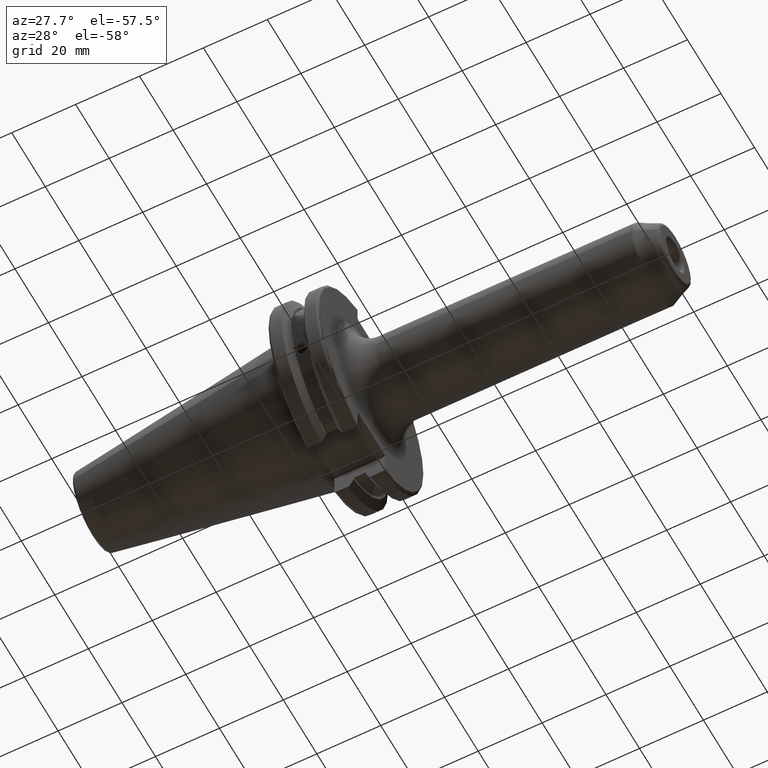
[diagram: clean part render]
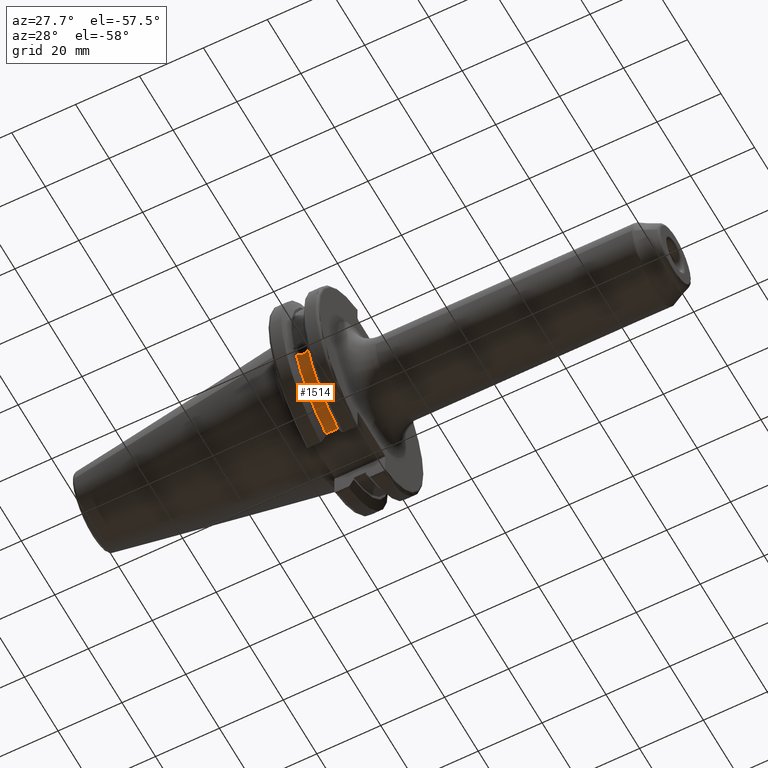
[diagram: same view with one face highlighted and labeled with its STEP entity id]
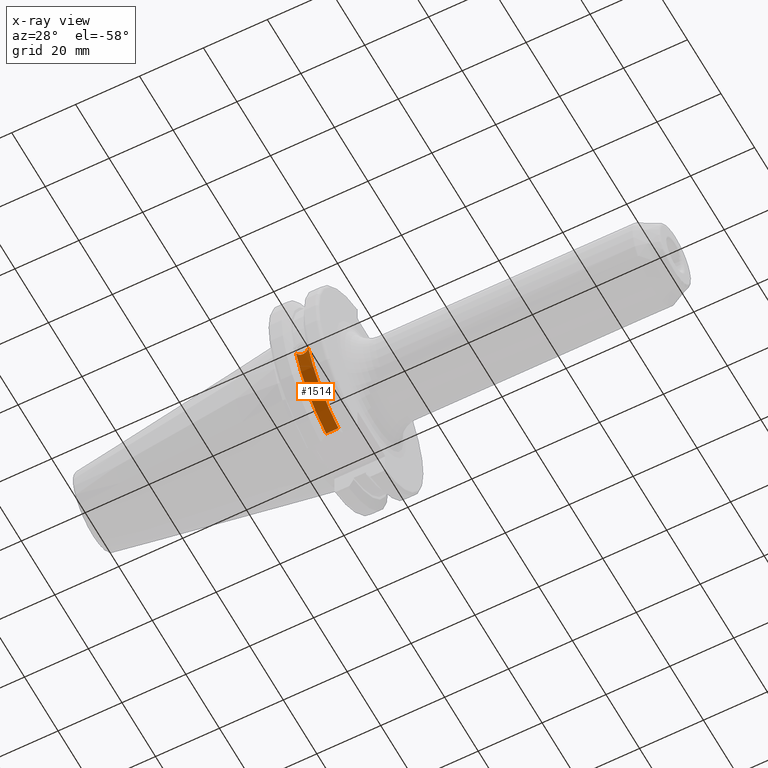
[diagram: x-ray of the same camera — body ghosted, the highlighted face saturated]
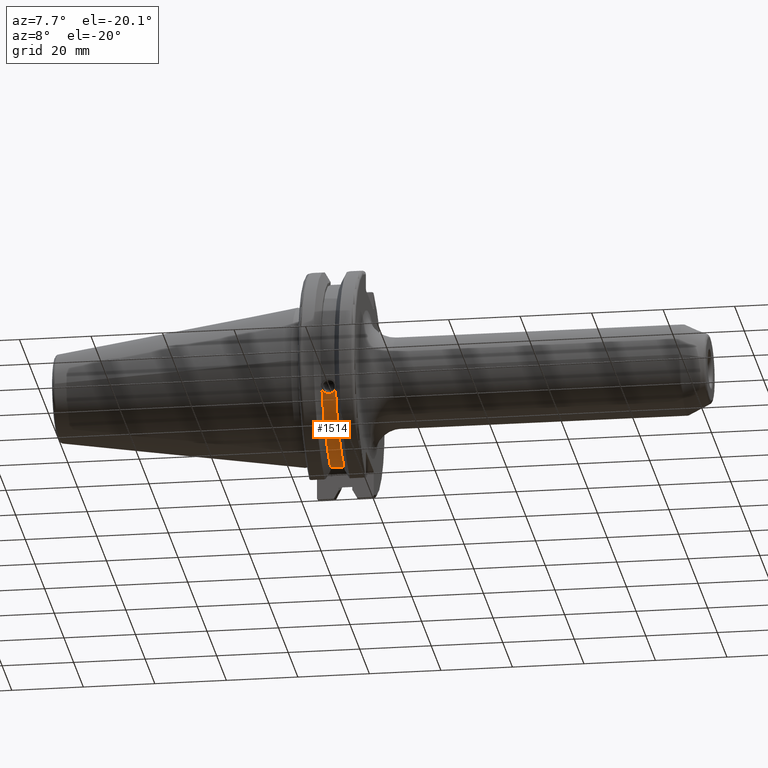
[diagram: same view with one face highlighted and labeled with its STEP entity id]
A machine part, auxiliary view. The second image highlights one B-rep face of the part: STEP entity #1514.
The next image is the same camera in x-ray: the body ghosted, the highlighted face saturated — about 0% of this face is hidden behind the body in this view.
A second angle (auxiliary view) of the same face is appended — the face is thin or edge-on in the first view.
In plain terms, the highlighted cylindrical surface (partial cylindrical patch) has radius 28.15 mm, axis along (1, 0, 0).
Its self-contained STEP definition (entity closure, byte-faithful):
#73=B_SPLINE_CURVE_WITH_KNOTS('',3,(#2552,#2553,#2554,#2555,#2556,#2557,
#2558,#2559,#2560,#2561,#2562,#2563,#2564,#2565,#2566),.UNSPECIFIED.,.F.,
 .F.,(4,2,2,3,2,2,4),(-0.231446873660085,-0.158271583089134,-0.0791357915445672,
0.,0.0791357915445671,0.158271583089134,0.231446873660466),
 .UNSPECIFIED.);
#125=LINE('',#2624,#217);
#217=VECTOR('',#1943,10.);
#290=CYLINDRICAL_SURFACE('',#1664,28.15);
#382=FACE_OUTER_BOUND('',#475,.T.);
#475=EDGE_LOOP('',(#1156,#1157,#1158,#1159));
#576=CIRCLE('',#1663,28.15);
#577=CIRCLE('',#1665,28.15);
#671=VERTEX_POINT('',#2549);
#672=VERTEX_POINT('',#2551);
#685=VERTEX_POINT('',#2618);
#686=VERTEX_POINT('',#2622);
#843=EDGE_CURVE('',#672,#671,#73,.T.);
#861=EDGE_CURVE('',#672,#685,#576,.T.);
#863=EDGE_CURVE('',#671,#686,#577,.T.);
#864=EDGE_CURVE('',#686,#685,#125,.T.);
#1156=ORIENTED_EDGE('',*,*,#843,.T.);
#1157=ORIENTED_EDGE('',*,*,#863,.T.);
#1158=ORIENTED_EDGE('',*,*,#864,.T.);
#1159=ORIENTED_EDGE('',*,*,#861,.F.);
#1514=ADVANCED_FACE('',(#382),#290,.T.);
#1663=AXIS2_PLACEMENT_3D('',#2619,#1936,#1937);
#1664=AXIS2_PLACEMENT_3D('',#2621,#1939,#1940);
#1665=AXIS2_PLACEMENT_3D('',#2623,#1941,#1942);
#1936=DIRECTION('center_axis',(1.,0.,0.));
#1937=DIRECTION('ref_axis',(0.,0.,-1.));
#1939=DIRECTION('center_axis',(1.,0.,0.));
#1940=DIRECTION('ref_axis',(0.,1.,0.));
#1941=DIRECTION('center_axis',(1.,0.,0.));
#1942=DIRECTION('ref_axis',(0.,0.,-1.));
#1943=DIRECTION('',(1.,0.,0.));
#2549=CARTESIAN_POINT('',(9.2191,-26.1451788594704,-10.4332220529567));
#2551=CARTESIAN_POINT('',(13.0491,-26.1451788594704,-10.4332220529567));
#2552=CARTESIAN_POINT('Ctrl Pts',(13.0491,-26.1451788594704,-10.4332220529567));
#2553=CARTESIAN_POINT('Ctrl Pts',(12.9428694290343,-26.0576536126147,-10.6525563316815));
#2554=CARTESIAN_POINT('Ctrl Pts',(12.791379862294,-25.9751489313128,-10.8509873904882));
#2555=CARTESIAN_POINT('Ctrl Pts',(12.4326293734259,-25.8346412777187,-11.1816210830117));
#2556=CARTESIAN_POINT('Ctrl Pts',(12.1965549887012,-25.7695111693635,-11.3298867884858));
#2557=CARTESIAN_POINT('Ctrl Pts',(11.6791874573612,-25.6822868299377,-11.5262389251846));
#2558=CARTESIAN_POINT('Ctrl Pts',(11.3978859718152,-25.6603958057616,-11.5743935949859));
#2559=CARTESIAN_POINT('Ctrl Pts',(11.1341,-25.6603958057616,-11.5743935949859));
#2560=CARTESIAN_POINT('Ctrl Pts',(10.8703140281848,-25.6603958057616,-11.5743935949859));
#2561=CARTESIAN_POINT('Ctrl Pts',(10.5890125426388,-25.6822868299377,-11.5262389251846));
#2562=CARTESIAN_POINT('Ctrl Pts',(10.0716450112988,-25.7695111693635,-11.3298867884858));
#2563=CARTESIAN_POINT('Ctrl Pts',(9.83557062657411,-25.8346412777187,-11.1816210830117));
#2564=CARTESIAN_POINT('Ctrl Pts',(9.4768201377051,-25.9751489313131,-10.8509873904873));
#2565=CARTESIAN_POINT('Ctrl Pts',(9.32533057097183,-26.0576536126096,-10.6525563316942));
#2566=CARTESIAN_POINT('Ctrl Pts',(9.2191,-26.1451788594704,-10.4332220529567));
#2618=CARTESIAN_POINT('',(13.0491,-8.19,-26.932255754021));
#2619=CARTESIAN_POINT('Origin',(13.0491,0.,0.));
#2621=CARTESIAN_POINT('Origin',(11.1341,0.,0.));
#2622=CARTESIAN_POINT('',(9.2191,-8.19,-26.932255754021));
#2623=CARTESIAN_POINT('Origin',(9.2191,0.,0.));
#2624=CARTESIAN_POINT('',(11.1341,-8.19,-26.932255754021));